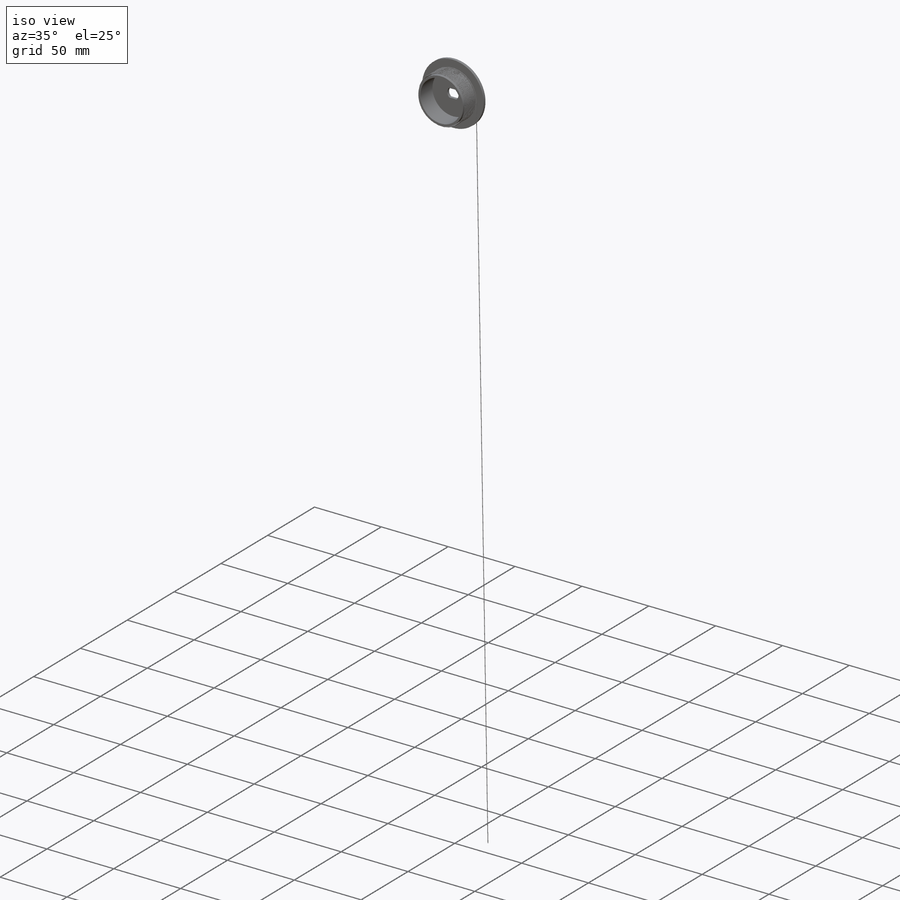
[diagram: iso view]
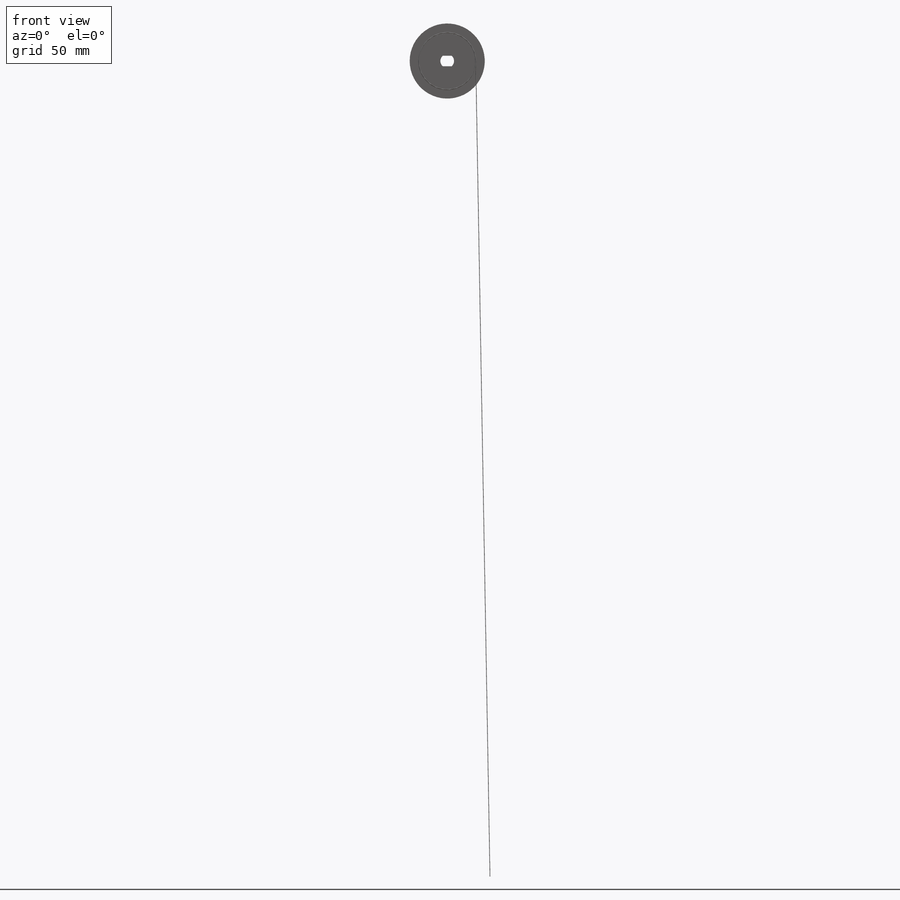
[diagram: front view]
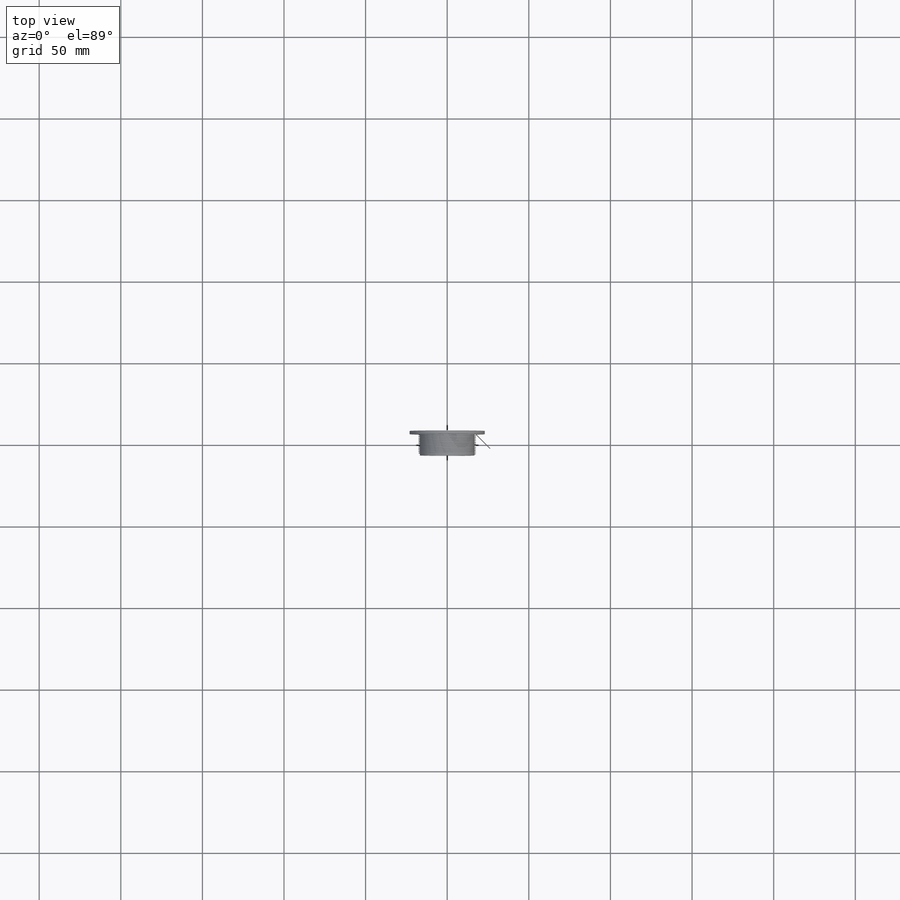
[diagram: top view]
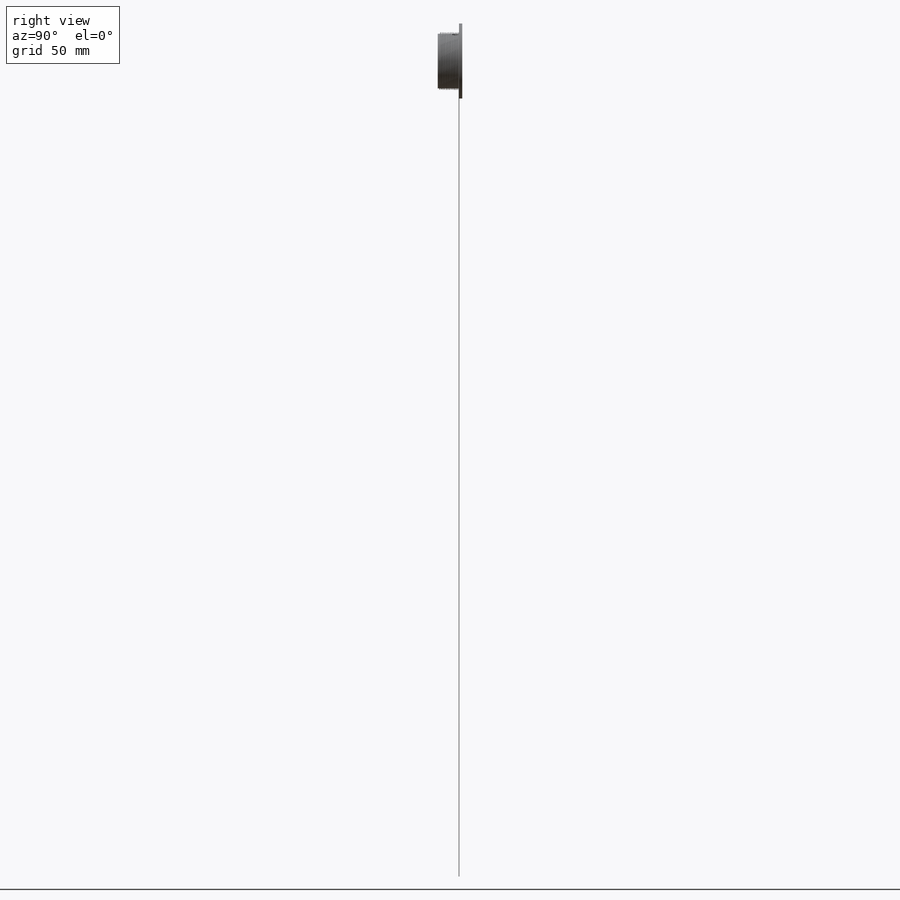
[diagram: right view]
SOLIDWORKS PART (.sldprt)
format: sldprt  version: not decoded by parser v0  size: 492,032 bytes
history: native  units: mm
features: sketch x6, cut_extrude x2, material x1, revolve x1, move_body x1, helix x1, sweep x1, extrude x1 + 1 further entry (+16 scaffold rows collapsed; 4 parser-record rows omitted)
feature tree (35):
  scaffold x16  (default folders/planes/origin — collapsed)
  material  "Material <not specified>"
  sketch  "Sketch1"  dims[c1.D1=15.0mm c1.D3=23.0mm c2.D1=1.5mm c2.D2=2.0mm c2.D3=4.0mm c2.D4=1.5mm]
  revolve  "Revolve1"  Angle=360deg
  "Axel"
  parser-record x4  (decoder bookkeeping rows leaked as tree rows — omitted from the tree; the rows remain in map.json)
  move_body  "Body-Move/Copy2"
  sketch  "Sketch3"  dims[D1=0.25mm]
  cut_extrude  "Cut-Extrude3"  Depth=10mm
  sketch  "Sketch4"  dims[D3=4.0mm D1=4.0mm D2=4.0mm]
  cut_extrude  "Cut-Extrude4"  [1 undecoded]
  sketch  "Sketch5"
  helix  "Helix/Spiral1"  Pitch=12mm
  sketch  "Sketch6"  dims[D1=~0.231839mm]
  sweep  "Sweep1"
  sketch  "Sketch7"
  extrude  "Boss-Extrude3"  Depth=500mm
decode coverage: 8 of 13 modeling features carry decoded parameters; 1 rows unclassified (native names shown)
note: ~ marks probable driven/reference dimensions
note: 1 parameter value undecoded
note: suppression state not decoded; provenance and decode notes live in map.json
